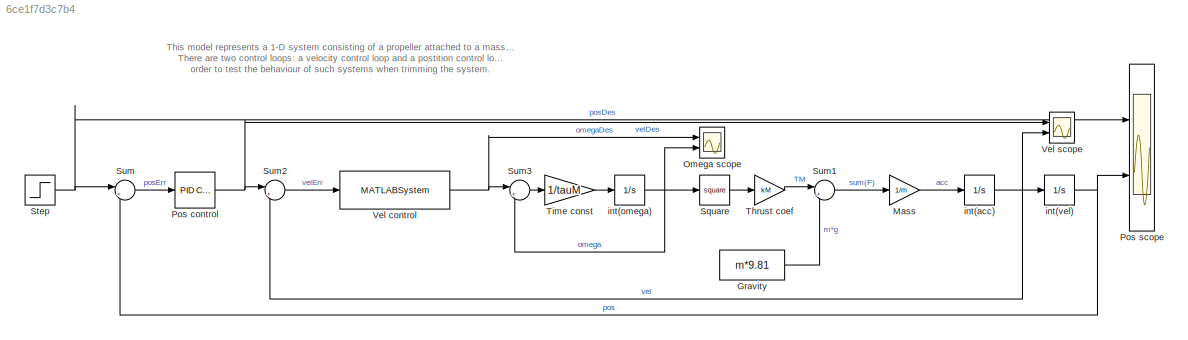
MODEL slx_6ce1f7d3c7b4
KIND model
CONFIG AbsTol = auto
CONFIG EnableMultiTasking = off
CONFIG FixedStep = auto
CONFIG MaxStep = 1e-3
CONFIG MinStep = auto
CONFIG RelTol = 1e-3
CONFIG SampleTimeConstraint = Unconstrained
CONFIG SolverName = VariableStepAuto
CONFIG StartTime = 0.0
CONFIG StopTime = 5
BLOCK [Constant] Gravity
  Value = m*9.81
BLOCK [Gain] Mass
  Gain = 1/m
BLOCK [Scope] Omega scope
  Floating = off
  NumInputPorts = 2
  Ports = [2]
  ScopeSpecificationString = Simulink.scopes.TimeScopeBlockCfg('CurrentConfiguration', extmgr.ConfigurationSet(extmgr.Configuration('Core','General UI',true),extmgr.Configuration('Core','Source UI',true),extmgr.Configuration('Sources','WiredSimulink',true,'DataLoggingVariableName','ScopeData2'),extmgr.Configuration('Visuals','Time Domain',true,'SerializedDisplays',{struct('MinYLimReal','367.38453','MaxYLimReal','784.60025','Y...<+1460ch>
BLOCK [Reference] Pos control  REF=pid_lib/PID Controller
  Ports = [1, 1]
  SourceBlock = pid_lib/PID Controller
  SourceProductBaseCode = SL
  SourceType = PID 1dof
BLOCK [Scope] Pos scope
  Floating = off
  NumInputPorts = 2
  Ports = [2]
  ScopeSpecificationString = Simulink.scopes.TimeScopeBlockCfg('CurrentConfiguration', extmgr.ConfigurationSet(extmgr.Configuration('Core','General UI',true),extmgr.Configuration('Core','Source UI',true),extmgr.Configuration('Sources','WiredSimulink',true),extmgr.Configuration('Visuals','Time Domain',true,'SerializedDisplays',{struct('MinYLimReal','-0.125','MaxYLimReal','1.125','YLabelReal','','MinYLimMag','0.00000','MaxYLimM...<+1401ch>
BLOCK [Math] Square
  Operator = square
  Ports = [1, 1]
  SignedPower = on
BLOCK [Step] Step
  SampleTime = 0
BLOCK [Sum] Sum
  Inputs = |+-
  Ports = [2, 1]
BLOCK [Sum] Sum1
  Inputs = |+-
  Ports = [2, 1]
BLOCK [Sum] Sum2
  Inputs = |+-
  Ports = [2, 1]
BLOCK [Sum] Sum3
  Inputs = |+-
  Ports = [2, 1]
BLOCK [Gain] Thrust coef
  Gain = kM
BLOCK [Gain] Time const
  Gain = 1/tauM
BLOCK [MATLABSystem] Vel control
  Ki = 0.02
  Kp = 0.2
  MaskDisplay = disp('TestMatlabSystem');\nport_label('input',1,'u');\nport_label('output',1,'y');
  MaskType = TestMatlabSystem
  Ports = [1, 1]
  SimulateUsing = Code generation
  System = TestMatlabSystem
  Ts = 0.005
BLOCK [Scope] Vel scope
  Floating = off
  NumInputPorts = 2
  Ports = [2]
  ScopeSpecificationString = Simulink.scopes.TimeScopeBlockCfg('CurrentConfiguration', extmgr.ConfigurationSet(extmgr.Configuration('Core','General UI',true),extmgr.Configuration('Core','Source UI',true),extmgr.Configuration('Sources','WiredSimulink',true,'DataLoggingVariableName','ScopeData1'),extmgr.Configuration('Visuals','Time Domain',true,'SerializedDisplays',{struct('MinYLimReal','-0.24594','MaxYLimReal','2.13564','YLab...<+1441ch>
BLOCK [Integrator] int(acc)
  ContinuousStateAttributes = 'velocity'
  Ports = [1, 1]
BLOCK [Integrator] int(omega)
  ContinuousStateAttributes = 'omega'
  Ports = [1, 1]
BLOCK [Integrator] int(vel)
  ContinuousStateAttributes = 'position'
  Ports = [1, 1]
ANNOTATION (root): This model represents a 1-D system consisting of a propeller attached to a mass in free fall. Gravity pulls the mass down, the rotor pulls it up. There are two control loops: a velocity control loop and a postition control loop. The velocity loop is implemented using a MATALB System in order to test the behaviour of such systems when trimming the system.
LINE Gravity:1 -> Sum1:2
LINE Mass:1 -> int(acc):1
NET Pos control:1 -> Sum2:1, Vel scope:1
LINE Square:1 -> Thrust coef:1
NET Step:1 -> Pos scope:1, Sum:1
LINE Sum1:1 -> Mass:1
LINE Sum2:1 -> Vel control:1
LINE Sum3:1 -> Time const:1
LINE Sum:1 -> Pos control:1
LINE Thrust coef:1 -> Sum1:1
LINE Time const:1 -> int(omega):1
NET Vel control:1 -> Omega scope:1, Sum3:1
NET int(acc):1 -> Sum2:2, Vel scope:2, int(vel):1
NET int(omega):1 -> Omega scope:2, Square:1, Sum3:2
NET int(vel):1 -> Pos scope:2, Sum:2
note: NET lines group one-source signal fan-out (src -> all destinations, sorted); 1:1 wires keep LINE
